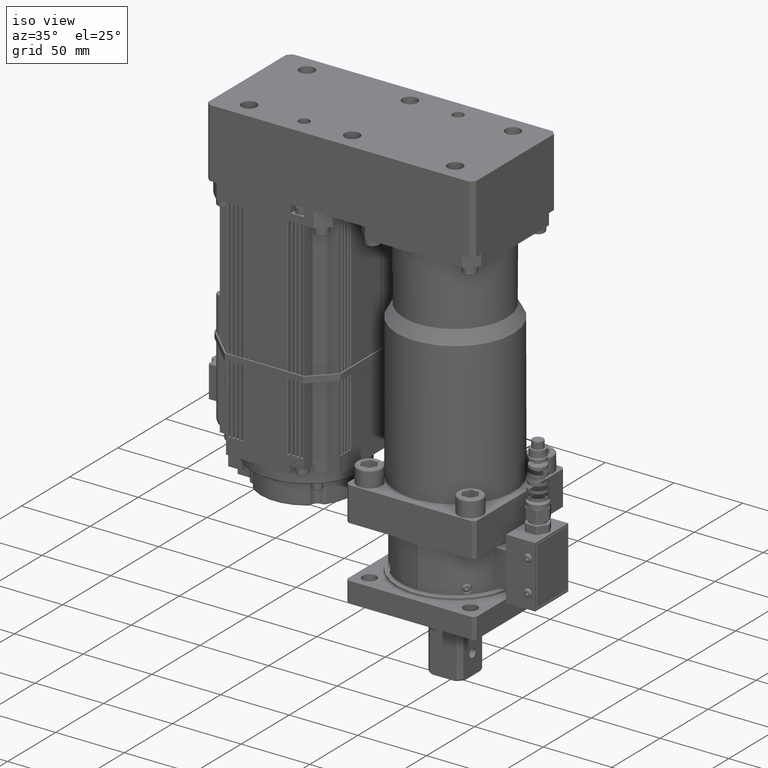
[diagram: clean part render]
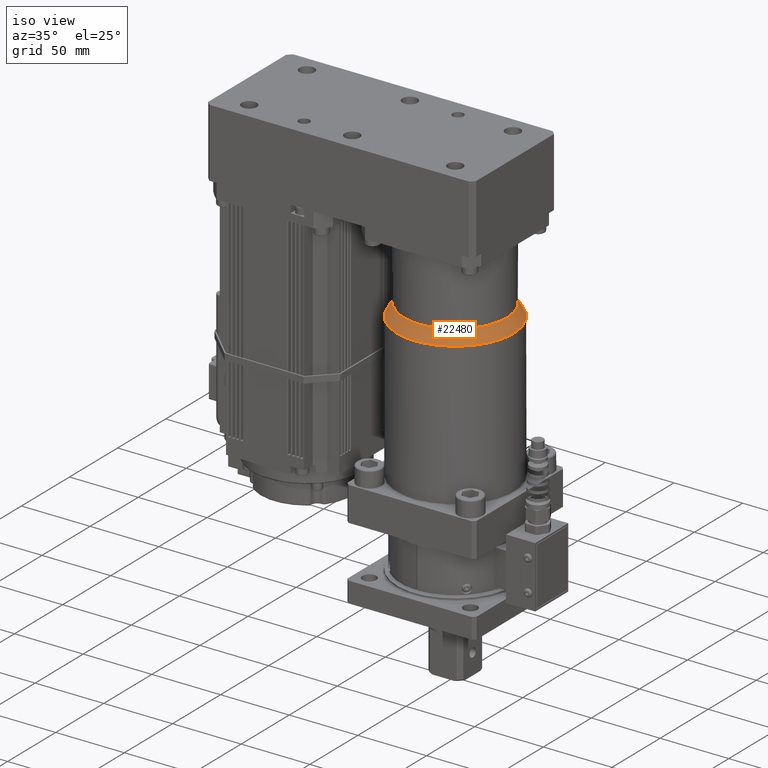
[diagram: same view with one face highlighted and labeled with its STEP entity id]
A machine part, iso view. The second image highlights one B-rep face of the part: STEP entity #22480.
In plain terms, the highlighted conical surface has half-angle 29.055 deg.
Its self-contained STEP definition (entity closure, byte-faithful):
#56=CONICAL_SURFACE('',#24496,40.,0.507098504392337);
#3018=LINE('',#36853,#4992);
#4992=VECTOR('',#30213,40.);
#6515=FACE_OUTER_BOUND('',#7816,.T.);
#7816=EDGE_LOOP('',(#19452,#19453,#19454,#19455));
#8801=CIRCLE('',#24460,42.5);
#8813=CIRCLE('',#24475,37.5);
#10694=VERTEX_POINT('',#36767);
#10708=VERTEX_POINT('',#36801);
#13640=EDGE_CURVE('',#10694,#10694,#8801,.T.);
#13656=EDGE_CURVE('',#10708,#10708,#8813,.T.);
#13682=EDGE_CURVE('',#10694,#10708,#3018,.T.);
#19452=ORIENTED_EDGE('',*,*,#13640,.F.);
#19453=ORIENTED_EDGE('',*,*,#13682,.T.);
#19454=ORIENTED_EDGE('',*,*,#13656,.T.);
#19455=ORIENTED_EDGE('',*,*,#13682,.F.);
#22480=ADVANCED_FACE('',(#6515),#56,.T.);
#24460=AXIS2_PLACEMENT_3D('',#36769,#30114,#30115);
#24475=AXIS2_PLACEMENT_3D('',#36802,#30148,#30149);
#24496=AXIS2_PLACEMENT_3D('',#36852,#30211,#30212);
#30114=DIRECTION('center_axis',(1.22305727241648E-16,3.82631289137921E-16,
-1.));
#30115=DIRECTION('ref_axis',(-4.87702025657842E-18,1.,3.82631289137921E-16));
#30148=DIRECTION('center_axis',(1.22305727241648E-16,3.82631289137921E-16,
-1.));
#30149=DIRECTION('ref_axis',(-4.87702025657842E-18,1.,3.82631289137921E-16));
#30211=DIRECTION('center_axis',(1.22305727241648E-16,3.82631289137921E-16,
-1.));
#30212=DIRECTION('ref_axis',(1.,4.87702025657837E-18,1.22305727241648E-16));
#30213=DIRECTION('',(0.485642931178632,-3.915855411785E-16,0.874157276121538));
#36767=CARTESIAN_POINT('',(-89.5000000000001,47.,183.));
#36769=CARTESIAN_POINT('Origin',(-47.0000000000001,47.,183.));
#36801=CARTESIAN_POINT('',(-84.5000000000002,47.,192.));
#36802=CARTESIAN_POINT('Origin',(-47.0000000000001,47.,192.));
#36852=CARTESIAN_POINT('Origin',(-47.0000000000001,47.,187.5));
#36853=CARTESIAN_POINT('',(-87.0000000000001,47.,187.5));